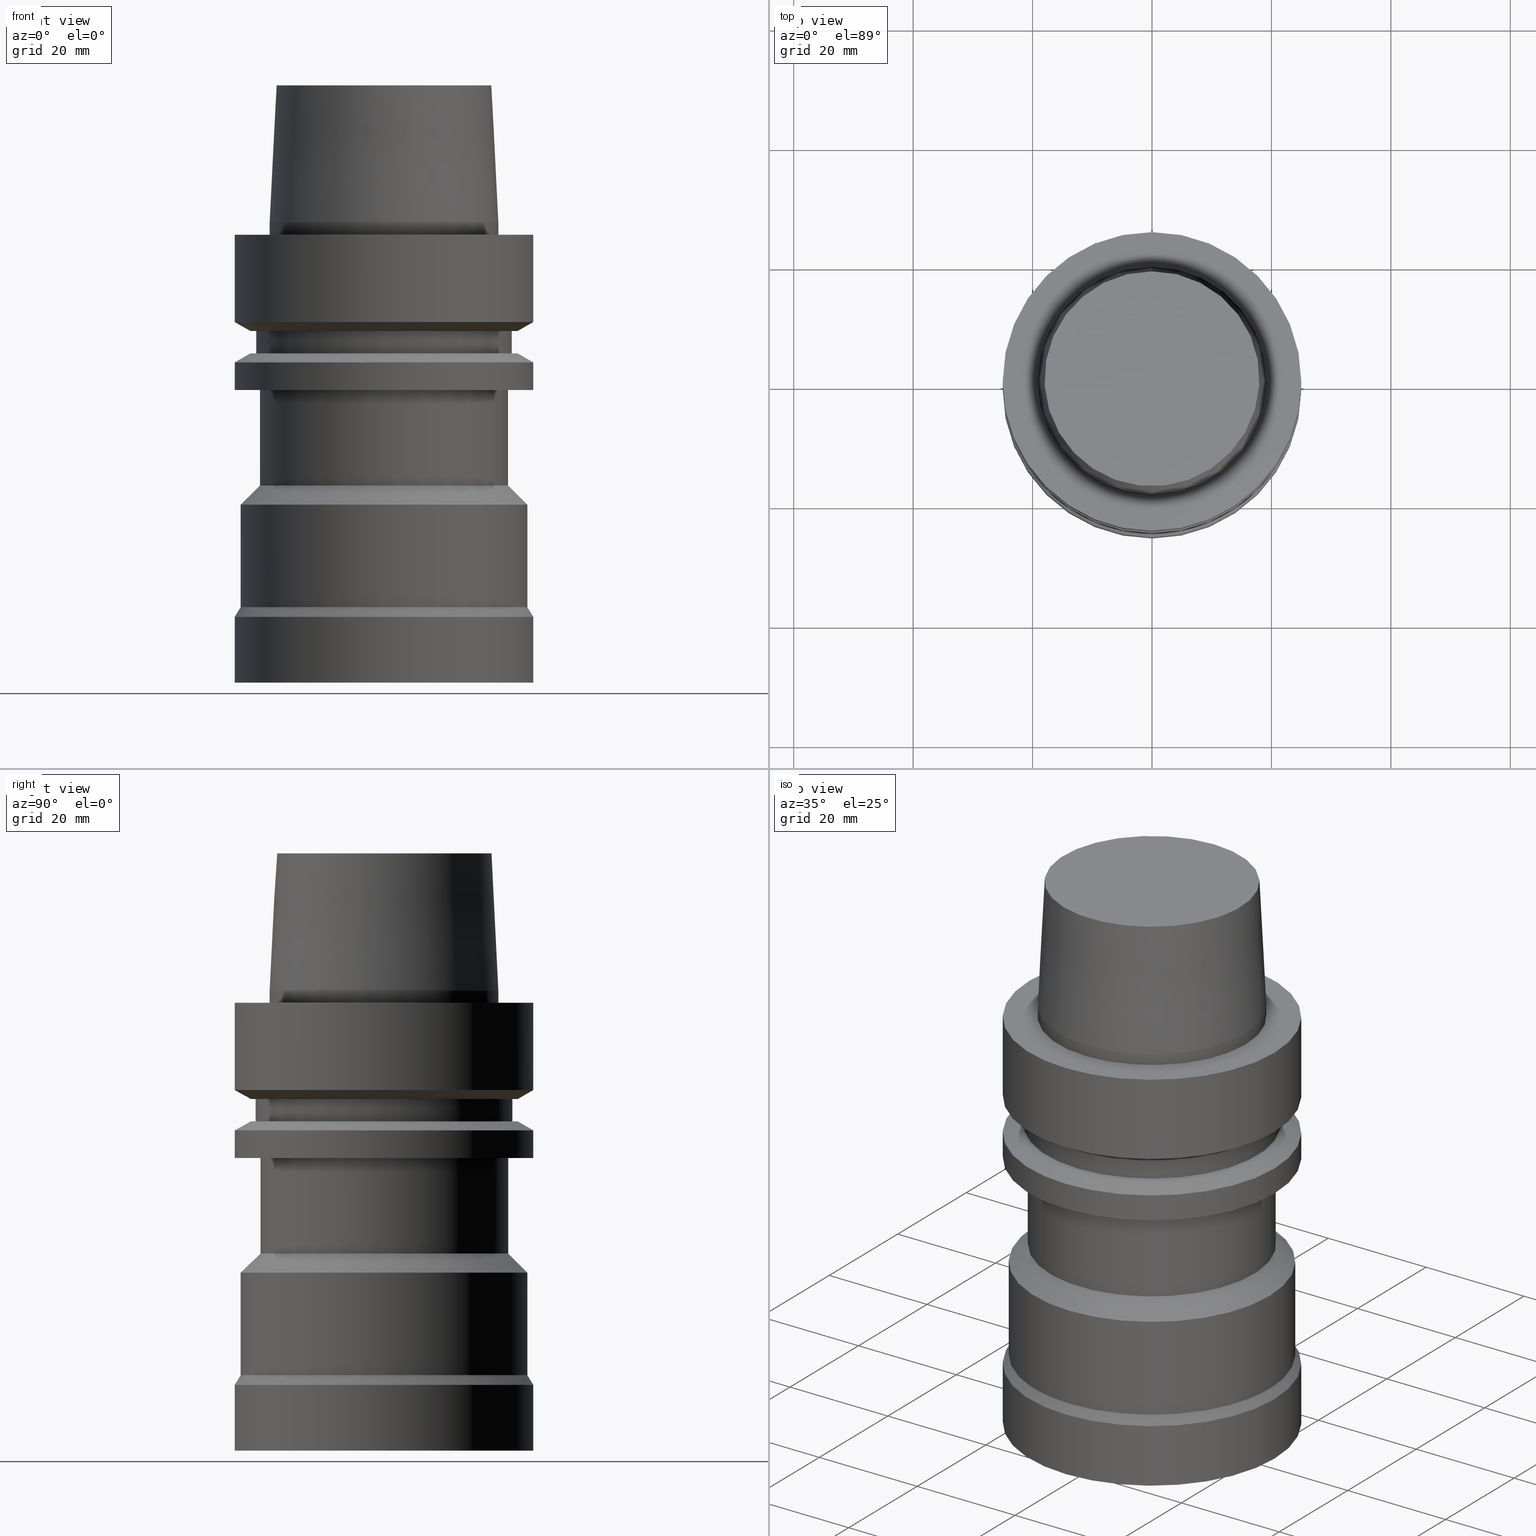
[diagram: canonical four-view strip — front | top / right | iso, engineering-drawing reading convention]
A machine part, canonical four-view strip (front | top / right | iso — engineering-drawing reading convention). The complete STEP part file that produces these views, byte-faithful:
ISO-10303-21;
HEADER;
FILE_DESCRIPTION((''),'1');
FILE_NAME('//Big_tech03/bigt/Translate/21_\X2\8F2A90ED7DDA\X0\-DXF/71_\X2\5207524A5DE55177\X0\/01_\X2\30A830F330C930DF30EB52A05DE5\X0\/01_\X2\30D530EB30AB30C330C830DF30EB\X0\ FCM/HSK/A 50/HSK-A50-FCM50115-75.stp','2012-05-30T04:59:51',(''),(''),'Spatial Interop R18','Kubotek KeyCreator V8.5.1 (14335)',' ');
FILE_SCHEMA(('CONFIG_CONTROL_DESIGN'));
ENDSEC;
DATA;
#1=DESIGN_CONTEXT('',#27,'design');
#2=APPLICATION_PROTOCOL_DEFINITION('INTERNATIONAL STANDARD','config_control_design',1994,#27);
#3=PRODUCT_CATEGORY_RELATIONSHIP('NONE','NONE',#28,#29);
#4=DATE_AND_TIME(#30,#31);
#5=DATE_TIME_ROLE('creation_date');
#6=DATE_TIME_ROLE('classification_date');
#7=PERSON_AND_ORGANIZATION_ROLE('creator');
#8=PERSON_AND_ORGANIZATION_ROLE('design_supplier');
#9=PERSON_AND_ORGANIZATION_ROLE('classification_officer');
#10=PERSON_AND_ORGANIZATION_ROLE('design_owner');
#11=APPROVAL_PERSON_ORGANIZATION(#32,#33,#34);
#12=APPROVAL_DATE_TIME(#4,#33);
#13=CC_DESIGN_APPROVAL(#33,(#35,#36,#37));
#14=CC_DESIGN_DATE_AND_TIME_ASSIGNMENT(#4,#5,(#37));
#15=CC_DESIGN_DATE_AND_TIME_ASSIGNMENT(#4,#6,(#35));
#16=CC_DESIGN_PERSON_AND_ORGANIZATION_ASSIGNMENT(#32,#10,(#38));
#17=CC_DESIGN_PERSON_AND_ORGANIZATION_ASSIGNMENT(#32,#7,(#37));
#18=CC_DESIGN_PERSON_AND_ORGANIZATION_ASSIGNMENT(#32,#7,(#36));
#19=CC_DESIGN_PERSON_AND_ORGANIZATION_ASSIGNMENT(#32,#8,(#36));
#20=CC_DESIGN_SECURITY_CLASSIFICATION(#35,(#36));
#21=CC_DESIGN_PERSON_AND_ORGANIZATION_ASSIGNMENT(#32,#9,(#35));
#22=SHAPE_DEFINITION_REPRESENTATION(#39,#40);
#23= (GEOMETRIC_REPRESENTATION_CONTEXT(3)GLOBAL_UNCERTAINTY_ASSIGNED_CONTEXT((#43))GLOBAL_UNIT_ASSIGNED_CONTEXT((#45,#46,#47))REPRESENTATION_CONTEXT('NONE','WORKSPACE'));
#27=APPLICATION_CONTEXT('CONFIGURATION CONTROLLED 3D DESIGNS OF MECHANICAL PARTS AND ASSEMBLIES');
#28=PRODUCT_CATEGORY('part','NONE');
#29=PRODUCT_RELATED_PRODUCT_CATEGORY('detail',' ',(#38));
#30=CALENDAR_DATE(2012,30,4);
#31=LOCAL_TIME(13,59,51.0,#49);
#32=PERSON_AND_ORGANIZATION(#50,#51);
#33=APPROVAL(#52,'SOLID MODEL');
#34=APPROVAL_ROLE('APPROVED');
#35=SECURITY_CLASSIFICATION('','',#53);
#36=PRODUCT_DEFINITION_FORMATION_WITH_SPECIFIED_SOURCE(' ','NONE',#38,.NOT_KNOWN.);
#37=PRODUCT_DEFINITION('NONE','NONE',#36,#1);
#38=PRODUCT('1','1','PART-1-DESC',(#54));
#39=PRODUCT_DEFINITION_SHAPE('NONE','NONE',#37);
#40=ADVANCED_BREP_SHAPE_REPRESENTATION('1',(#55,#56),#23);
#43=UNCERTAINTY_MEASURE_WITH_UNIT(LENGTH_MEASURE(1.0E-006),#45,'','');
#45= (CONVERSION_BASED_UNIT('MILLIMETRE',#59)LENGTH_UNIT()NAMED_UNIT(#62));
#46= (NAMED_UNIT(#64)PLANE_ANGLE_UNIT()SI_UNIT($,.RADIAN.));
#47= (NAMED_UNIT(#64)SOLID_ANGLE_UNIT()SI_UNIT($,.STERADIAN.));
#49=COORDINATED_UNIVERSAL_TIME_OFFSET(9,0,.AHEAD.);
#50=PERSON('','UNSPECIFIED',$,$,$,$);
#51=ORGANIZATION('UNSPECIFIED','UNSPECIFIED','UNSPECIFIED');
#52=APPROVAL_STATUS('approved');
#53=SECURITY_CLASSIFICATION_LEVEL('unclassified');
#54=MECHANICAL_CONTEXT('',#27,'mechanical');
#55=MANIFOLD_SOLID_BREP('1',#70);
#56=AXIS2_PLACEMENT_3D('',#71,#72,#73);
#59=LENGTH_MEASURE_WITH_UNIT(LENGTH_MEASURE(1.0),#74);
#62=DIMENSIONAL_EXPONENTS(1.0,0.0,0.0,0.0,0.0,0.0,0.0);
#64=DIMENSIONAL_EXPONENTS(0.0,0.0,0.0,0.0,0.0,0.0,0.0);
#70=CLOSED_SHELL('',(#75,#76,#77,#78,#79,#80,#81,#82,#83,#84,#85,#86,#87,#88,#89,#90,#91,#92));
#71=CARTESIAN_POINT('',(0.0,0.0,0.0));
#72=DIRECTION('',(0.0,0.0,1.0));
#73=DIRECTION('',(1.0,0.0,0.0));
#74= (NAMED_UNIT(#62)LENGTH_UNIT()SI_UNIT(.MILLI.,.METRE.));
#75=ADVANCED_FACE('',(#94),#95,.T.);
#76=ADVANCED_FACE('',(#96),#97,.T.);
#77=ADVANCED_FACE('',(#98,#99),#100,.T.);
#78=ADVANCED_FACE('',(#101,#102),#103,.T.);
#79=ADVANCED_FACE('',(#104,#105),#106,.T.);
#80=ADVANCED_FACE('',(#107,#108),#109,.T.);
#81=ADVANCED_FACE('',(#110,#111),#112,.T.);
#82=ADVANCED_FACE('',(#113,#114),#115,.T.);
#83=ADVANCED_FACE('',(#116,#117),#118,.T.);
#84=ADVANCED_FACE('',(#119,#120),#121,.T.);
#85=ADVANCED_FACE('',(#122,#123),#124,.T.);
#86=ADVANCED_FACE('',(#125,#126),#127,.T.);
#87=ADVANCED_FACE('',(#128,#129),#130,.T.);
#88=ADVANCED_FACE('',(#131,#132),#133,.T.);
#89=ADVANCED_FACE('',(#134,#135),#136,.T.);
#90=ADVANCED_FACE('',(#137,#138),#139,.T.);
#91=ADVANCED_FACE('',(#140,#141),#142,.T.);
#92=ADVANCED_FACE('',(#143,#144),#145,.T.);
#94=FACE_OUTER_BOUND('',#146,.T.);
#95=PLANE('',#147);
#96=FACE_OUTER_BOUND('',#148,.T.);
#97=PLANE('',#149);
#98=FACE_BOUND('',#150,.T.);
#99=FACE_BOUND('',#151,.T.);
#100=CONICAL_SURFACE('',#152,18.5750000005215,0.049958395676703);
#101=FACE_BOUND('',#153,.T.);
#102=FACE_BOUND('',#154,.T.);
#103=CYLINDRICAL_SURFACE('',#155,19.15);
#104=FACE_OUTER_BOUND('',#156,.T.);
#105=FACE_BOUND('',#157,.T.);
#106=PLANE('',#158);
#107=FACE_BOUND('',#159,.T.);
#108=FACE_BOUND('',#160,.T.);
#109=CYLINDRICAL_SURFACE('',#161,25.0);
#110=FACE_BOUND('',#162,.T.);
#111=FACE_BOUND('',#163,.T.);
#112=CONICAL_SURFACE('',#164,23.69879763,1.04719755326565);
#113=FACE_BOUND('',#165,.T.);
#114=FACE_OUTER_BOUND('',#166,.T.);
#115=PLANE('',#167);
#116=FACE_BOUND('',#168,.T.);
#117=FACE_BOUND('',#169,.T.);
#118=CYLINDRICAL_SURFACE('',#170,21.5);
#119=FACE_OUTER_BOUND('',#171,.T.);
#120=FACE_BOUND('',#172,.T.);
#121=PLANE('',#173);
#122=FACE_BOUND('',#174,.T.);
#123=FACE_BOUND('',#175,.T.);
#124=CONICAL_SURFACE('',#176,23.69879763,1.04719755326565);
#125=FACE_BOUND('',#177,.T.);
#126=FACE_BOUND('',#178,.T.);
#127=CYLINDRICAL_SURFACE('',#179,25.0);
#128=FACE_BOUND('',#180,.T.);
#129=FACE_OUTER_BOUND('',#181,.T.);
#130=PLANE('',#182);
#131=FACE_BOUND('',#183,.T.);
#132=FACE_BOUND('',#184,.T.);
#133=CYLINDRICAL_SURFACE('',#185,20.8);
#134=FACE_BOUND('',#186,.T.);
#135=FACE_BOUND('',#187,.T.);
#136=CONICAL_SURFACE('',#188,22.4,0.785398163397448);
#137=FACE_BOUND('',#189,.T.);
#138=FACE_BOUND('',#190,.T.);
#139=CYLINDRICAL_SURFACE('',#191,24.0);
#140=FACE_BOUND('',#192,.T.);
#141=FACE_BOUND('',#193,.T.);
#142=CONICAL_SURFACE('',#194,24.5,0.54582981744348);
#143=FACE_BOUND('',#195,.T.);
#144=FACE_BOUND('',#196,.T.);
#145=CYLINDRICAL_SURFACE('',#197,25.0);
#146=EDGE_LOOP('',(#198));
#147=AXIS2_PLACEMENT_3D('',#199,#200,#201);
#148=EDGE_LOOP('',(#202));
#149=AXIS2_PLACEMENT_3D('',#203,#204,#205);
#150=EDGE_LOOP('',(#206));
#151=EDGE_LOOP('',(#207));
#152=AXIS2_PLACEMENT_3D('',#208,#209,#210);
#153=EDGE_LOOP('',(#211));
#154=EDGE_LOOP('',(#212));
#155=AXIS2_PLACEMENT_3D('',#213,#214,#215);
#156=EDGE_LOOP('',(#216));
#157=EDGE_LOOP('',(#217));
#158=AXIS2_PLACEMENT_3D('',#218,#219,#220);
#159=EDGE_LOOP('',(#221));
#160=EDGE_LOOP('',(#222));
#161=AXIS2_PLACEMENT_3D('',#223,#224,#225);
#162=EDGE_LOOP('',(#226));
#163=EDGE_LOOP('',(#227));
#164=AXIS2_PLACEMENT_3D('',#228,#229,#230);
#165=EDGE_LOOP('',(#231));
#166=EDGE_LOOP('',(#232));
#167=AXIS2_PLACEMENT_3D('',#233,#234,#235);
#168=EDGE_LOOP('',(#236));
#169=EDGE_LOOP('',(#237));
#170=AXIS2_PLACEMENT_3D('',#238,#239,#240);
#171=EDGE_LOOP('',(#241));
#172=EDGE_LOOP('',(#242));
#173=AXIS2_PLACEMENT_3D('',#243,#244,#245);
#174=EDGE_LOOP('',(#246));
#175=EDGE_LOOP('',(#247));
#176=AXIS2_PLACEMENT_3D('',#248,#249,#250);
#177=EDGE_LOOP('',(#251));
#178=EDGE_LOOP('',(#252));
#179=AXIS2_PLACEMENT_3D('',#253,#254,#255);
#180=EDGE_LOOP('',(#256));
#181=EDGE_LOOP('',(#257));
#182=AXIS2_PLACEMENT_3D('',#258,#259,#260);
#183=EDGE_LOOP('',(#261));
#184=EDGE_LOOP('',(#262));
#185=AXIS2_PLACEMENT_3D('',#263,#264,#265);
#186=EDGE_LOOP('',(#266));
#187=EDGE_LOOP('',(#267));
#188=AXIS2_PLACEMENT_3D('',#268,#269,#270);
#189=EDGE_LOOP('',(#271));
#190=EDGE_LOOP('',(#272));
#191=AXIS2_PLACEMENT_3D('',#273,#274,#275);
#192=EDGE_LOOP('',(#276));
#193=EDGE_LOOP('',(#277));
#194=AXIS2_PLACEMENT_3D('',#278,#279,#280);
#195=EDGE_LOOP('',(#281));
#196=EDGE_LOOP('',(#282));
#197=AXIS2_PLACEMENT_3D('',#283,#284,#285);
#198=ORIENTED_EDGE('',*,*,#286,.T.);
#199=CARTESIAN_POINT('',(4.59242549680257E-015,12.5,-75.0));
#200=DIRECTION('',(6.12323399573677E-017,1.22464679914735E-016,-1.0));
#201=DIRECTION('',(-1.23259516440783E-032,1.0,1.22464679914735E-016));
#202=ORIENTED_EDGE('',*,*,#287,.F.);
#203=CARTESIAN_POINT('',(-1.53080849893419E-015,9.00000000052154,25.0));
#204=DIRECTION('',(-6.12323399573677E-017,-1.22464679914735E-016,1.0));
#205=DIRECTION('',(1.23259516440783E-032,-1.0,-1.22464679914735E-016));
#206=ORIENTED_EDGE('',*,*,#288,.F.);
#207=ORIENTED_EDGE('',*,*,#287,.T.);
#208=CARTESIAN_POINT('',(-8.26636589424463E-016,-1.65327317884893E-015,13.5));
#209=DIRECTION('',(6.12323399573677E-017,1.22464679914735E-016,-1.0));
#210=DIRECTION('',(-1.23259516440783E-032,1.0,1.22464679914735E-016));
#211=ORIENTED_EDGE('',*,*,#289,.F.);
#212=ORIENTED_EDGE('',*,*,#288,.T.);
#213=CARTESIAN_POINT('',(-6.12323399573677E-017,-1.22464679914735E-016,1.0));
#214=DIRECTION('',(-6.12323399573677E-017,-1.22464679914735E-016,1.0));
#215=DIRECTION('',(-1.23259516440783E-032,1.0,1.22464679914735E-016));
#216=ORIENTED_EDGE('',*,*,#290,.F.);
#217=ORIENTED_EDGE('',*,*,#289,.T.);
#218=CARTESIAN_POINT('',(-2.72095382543029E-031,22.075,2.70340780911778E-015));
#219=DIRECTION('',(-6.12323399573677E-017,-1.22464679914735E-016,1.0));
#220=DIRECTION('',(1.23259516440783E-032,-1.0,-1.22464679914735E-016));
#221=ORIENTED_EDGE('',*,*,#291,.F.);
#222=ORIENTED_EDGE('',*,*,#290,.T.);
#223=CARTESIAN_POINT('',(4.47684973986342E-016,8.95369947972685E-016,-7.311250465));
#224=DIRECTION('',(-6.12323399573677E-017,-1.22464679914735E-016,1.0));
#225=DIRECTION('',(-1.23259516440783E-032,1.0,1.22464679914735E-016));
#226=ORIENTED_EDGE('',*,*,#292,.F.);
#227=ORIENTED_EDGE('',*,*,#291,.T.);
#228=CARTESIAN_POINT('',(9.41370714892619E-016,1.88274142978524E-015,-15.373750465));
#229=DIRECTION('',(-6.12323399573676E-017,-1.22464679914735E-016,1.0));
#230=DIRECTION('',(-1.23259516440783E-032,1.0,1.22464679914735E-016));
#231=ORIENTED_EDGE('',*,*,#293,.F.);
#232=ORIENTED_EDGE('',*,*,#292,.T.);
#233=CARTESIAN_POINT('',(9.87371481812553E-016,21.94879763,-16.125));
#234=DIRECTION('',(6.12323399573677E-017,1.22464679914735E-016,-1.0));
#235=DIRECTION('',(-1.23259516440783E-032,1.0,1.22464679914735E-016));
#236=ORIENTED_EDGE('',*,*,#294,.F.);
#237=ORIENTED_EDGE('',*,*,#293,.T.);
#238=CARTESIAN_POINT('',(1.10218211923262E-015,2.20436423846524E-015,-18.0));
#239=DIRECTION('',(-6.12323399573677E-017,-1.22464679914735E-016,1.0));
#240=DIRECTION('',(-1.23259516440783E-032,1.0,1.22464679914735E-016));
#241=ORIENTED_EDGE('',*,*,#295,.F.);
#242=ORIENTED_EDGE('',*,*,#294,.T.);
#243=CARTESIAN_POINT('',(1.21699275665268E-015,21.94879763,-19.875));
#244=DIRECTION('',(-6.12323399573677E-017,-1.22464679914735E-016,1.0));
#245=DIRECTION('',(1.23259516440783E-032,-1.0,-1.22464679914735E-016));
#246=ORIENTED_EDGE('',*,*,#296,.F.);
#247=ORIENTED_EDGE('',*,*,#295,.T.);
#248=CARTESIAN_POINT('',(1.26299352357262E-015,2.52598704714523E-015,-20.626249535));
#249=DIRECTION('',(6.12323399573676E-017,1.22464679914735E-016,-1.0));
#250=DIRECTION('',(-1.23259516440783E-032,1.0,1.22464679914735E-016));
#251=ORIENTED_EDGE('',*,*,#297,.F.);
#252=ORIENTED_EDGE('',*,*,#296,.T.);
#253=CARTESIAN_POINT('',(1.45051756469206E-015,2.90103512938411E-015,-23.688749535));
#254=DIRECTION('',(-6.12323399573677E-017,-1.22464679914735E-016,1.0));
#255=DIRECTION('',(-1.23259516440783E-032,1.0,1.22464679914735E-016));
#256=ORIENTED_EDGE('',*,*,#298,.F.);
#257=ORIENTED_EDGE('',*,*,#297,.T.);
#258=CARTESIAN_POINT('',(1.59204083889156E-015,22.9,-26.0));
#259=DIRECTION('',(6.12323399573677E-017,1.22464679914735E-016,-1.0));
#260=DIRECTION('',(-1.23259516440783E-032,1.0,1.22464679914735E-016));
#261=ORIENTED_EDGE('',*,*,#299,.F.);
#262=ORIENTED_EDGE('',*,*,#298,.T.);
#263=CARTESIAN_POINT('',(2.0818995585505E-015,4.163799117101E-015,-34.0));
#264=DIRECTION('',(-6.12323399573677E-017,-1.22464679914735E-016,1.0));
#265=DIRECTION('',(-1.23259516440783E-032,1.0,1.22464679914735E-016));
#266=ORIENTED_EDGE('',*,*,#300,.F.);
#267=ORIENTED_EDGE('',*,*,#299,.T.);
#268=CARTESIAN_POINT('',(2.66973002214123E-015,5.33946004428246E-015,-43.6));
#269=DIRECTION('',(6.12323399573677E-017,1.22464679914735E-016,-1.0));
#270=DIRECTION('',(-1.23259516440783E-032,1.0,1.22464679914735E-016));
#271=ORIENTED_EDGE('',*,*,#301,.F.);
#272=ORIENTED_EDGE('',*,*,#300,.T.);
#273=CARTESIAN_POINT('',(3.29287898866524E-015,6.58575797733049E-015,-53.776794925));
#274=DIRECTION('',(-6.12323399573677E-017,-1.22464679914735E-016,1.0));
#275=DIRECTION('',(-1.23259516440783E-032,1.0,1.22464679914735E-016));
#276=ORIENTED_EDGE('',*,*,#302,.F.);
#277=ORIENTED_EDGE('',*,*,#301,.T.);
#278=CARTESIAN_POINT('',(3.8684629842645E-015,7.736925968529E-015,-63.176794925));
#279=DIRECTION('',(6.12323399573677E-017,1.22464679914735E-016,-1.0));
#280=DIRECTION('',(-1.23259516440783E-032,1.0,1.22464679914735E-016));
#281=ORIENTED_EDGE('',*,*,#286,.F.);
#282=ORIENTED_EDGE('',*,*,#302,.T.);
#283=CARTESIAN_POINT('',(4.25564762703705E-015,8.5112952540741E-015,-69.5));
#284=DIRECTION('',(-6.12323399573677E-017,-1.22464679914735E-016,1.0));
#285=DIRECTION('',(-1.23259516440783E-032,1.0,1.22464679914735E-016));
#286=EDGE_CURVE('',#303,#303,#304,.T.);
#287=EDGE_CURVE('',#305,#305,#306,.T.);
#288=EDGE_CURVE('',#307,#307,#308,.T.);
#289=EDGE_CURVE('',#309,#309,#310,.T.);
#290=EDGE_CURVE('',#311,#311,#312,.T.);
#291=EDGE_CURVE('',#313,#313,#314,.T.);
#292=EDGE_CURVE('',#315,#315,#316,.T.);
#293=EDGE_CURVE('',#317,#317,#318,.T.);
#294=EDGE_CURVE('',#319,#319,#320,.T.);
#295=EDGE_CURVE('',#321,#321,#322,.T.);
#296=EDGE_CURVE('',#323,#323,#324,.T.);
#297=EDGE_CURVE('',#325,#325,#326,.T.);
#298=EDGE_CURVE('',#327,#327,#328,.T.);
#299=EDGE_CURVE('',#329,#329,#330,.T.);
#300=EDGE_CURVE('',#331,#331,#332,.T.);
#301=EDGE_CURVE('',#333,#333,#334,.T.);
#302=EDGE_CURVE('',#335,#335,#336,.T.);
#303=VERTEX_POINT('',#337);
#304=CIRCLE('',#338,25.0);
#305=VERTEX_POINT('',#339);
#306=CIRCLE('',#340,18.0000000010431);
#307=VERTEX_POINT('',#341);
#308=CIRCLE('',#342,19.15);
#309=VERTEX_POINT('',#343);
#310=CIRCLE('',#344,19.15);
#311=VERTEX_POINT('',#345);
#312=CIRCLE('',#346,25.0);
#313=VERTEX_POINT('',#347);
#314=CIRCLE('',#348,25.0);
#315=VERTEX_POINT('',#349);
#316=CIRCLE('',#350,22.39759526);
#317=VERTEX_POINT('',#351);
#318=CIRCLE('',#352,21.5);
#319=VERTEX_POINT('',#353);
#320=CIRCLE('',#354,21.5);
#321=VERTEX_POINT('',#355);
#322=CIRCLE('',#356,22.39759526);
#323=VERTEX_POINT('',#357);
#324=CIRCLE('',#358,25.0);
#325=VERTEX_POINT('',#359);
#326=CIRCLE('',#360,25.0);
#327=VERTEX_POINT('',#361);
#328=CIRCLE('',#362,20.8);
#329=VERTEX_POINT('',#363);
#330=CIRCLE('',#364,20.8);
#331=VERTEX_POINT('',#365);
#332=CIRCLE('',#366,24.0);
#333=VERTEX_POINT('',#367);
#334=CIRCLE('',#368,24.0);
#335=VERTEX_POINT('',#369);
#336=CIRCLE('',#370,25.0);
#337=CARTESIAN_POINT('',(4.59242549680257E-015,25.0,-75.0));
#338=AXIS2_PLACEMENT_3D('',#371,#372,#373);
#339=CARTESIAN_POINT('',(-1.53080849893419E-015,18.0000000010431,25.0));
#340=AXIS2_PLACEMENT_3D('',#374,#375,#376);
#341=CARTESIAN_POINT('',(-1.22464679914736E-016,19.15,2.0));
#342=AXIS2_PLACEMENT_3D('',#377,#378,#379);
#343=CARTESIAN_POINT('',(-2.360419739841E-031,19.15,2.34519862036718E-015));
#344=AXIS2_PLACEMENT_3D('',#380,#381,#382);
#345=CARTESIAN_POINT('',(-3.08148791101958E-031,25.0,3.06161699786838E-015));
#346=AXIS2_PLACEMENT_3D('',#383,#384,#385);
#347=CARTESIAN_POINT('',(8.95369947972684E-016,25.0,-14.62250093));
#348=AXIS2_PLACEMENT_3D('',#386,#387,#388);
#349=CARTESIAN_POINT('',(9.87371481812553E-016,22.39759526,-16.125));
#350=AXIS2_PLACEMENT_3D('',#389,#390,#391);
#351=CARTESIAN_POINT('',(9.87371481812553E-016,21.5,-16.125));
#352=AXIS2_PLACEMENT_3D('',#392,#393,#394);
#353=CARTESIAN_POINT('',(1.21699275665268E-015,21.5,-19.875));
#354=AXIS2_PLACEMENT_3D('',#395,#396,#397);
#355=CARTESIAN_POINT('',(1.21699275665268E-015,22.39759526,-19.875));
#356=AXIS2_PLACEMENT_3D('',#398,#399,#400);
#357=CARTESIAN_POINT('',(1.30899429049255E-015,25.0,-21.37749907));
#358=AXIS2_PLACEMENT_3D('',#401,#402,#403);
#359=CARTESIAN_POINT('',(1.59204083889156E-015,25.0,-26.0));
#360=AXIS2_PLACEMENT_3D('',#404,#405,#406);
#361=CARTESIAN_POINT('',(1.59204083889156E-015,20.8,-26.0));
#362=AXIS2_PLACEMENT_3D('',#407,#408,#409);
#363=CARTESIAN_POINT('',(2.57175827820944E-015,20.8,-42.0));
#364=AXIS2_PLACEMENT_3D('',#410,#411,#412);
#365=CARTESIAN_POINT('',(2.76770176607302E-015,24.0,-45.2));
#366=AXIS2_PLACEMENT_3D('',#413,#414,#415);
#367=CARTESIAN_POINT('',(3.81805621125747E-015,24.0,-62.35358985));
#368=AXIS2_PLACEMENT_3D('',#416,#417,#418);
#369=CARTESIAN_POINT('',(3.91886975727153E-015,25.0,-64.0));
#370=AXIS2_PLACEMENT_3D('',#419,#420,#421);
#371=CARTESIAN_POINT('',(4.59242549680257E-015,9.18485099360515E-015,-75.0));
#372=DIRECTION('',(6.12323399573677E-017,1.22464679914735E-016,-1.0));
#373=DIRECTION('',(-1.23259516440783E-032,1.0,1.22464679914735E-016));
#374=CARTESIAN_POINT('',(-1.53080849893419E-015,-3.06161699786838E-015,25.0));
#375=DIRECTION('',(6.12323399573677E-017,1.22464679914735E-016,-1.0));
#376=DIRECTION('',(-1.23259516440783E-032,1.0,1.22464679914735E-016));
#377=CARTESIAN_POINT('',(-1.22464679914735E-016,-2.44929359829471E-016,2.0));
#378=DIRECTION('',(6.12323399573677E-017,1.22464679914735E-016,-1.0));
#379=DIRECTION('',(-1.23259516440783E-032,1.0,1.22464679914735E-016));
#380=CARTESIAN_POINT('',(0.0,0.0,0.0));
#381=DIRECTION('',(6.12323399573677E-017,1.22464679914735E-016,-1.0));
#382=DIRECTION('',(-1.23259516440783E-032,1.0,1.22464679914735E-016));
#383=CARTESIAN_POINT('',(0.0,0.0,0.0));
#384=DIRECTION('',(6.12323399573677E-017,1.22464679914735E-016,-1.0));
#385=DIRECTION('',(-1.23259516440783E-032,1.0,1.22464679914735E-016));
#386=CARTESIAN_POINT('',(8.95369947972685E-016,1.79073989594537E-015,-14.62250093));
#387=DIRECTION('',(6.12323399573677E-017,1.22464679914735E-016,-1.0));
#388=DIRECTION('',(-1.23259516440783E-032,1.0,1.22464679914735E-016));
#389=CARTESIAN_POINT('',(9.87371481812554E-016,1.97474296362511E-015,-16.125));
#390=DIRECTION('',(6.12323399573677E-017,1.22464679914735E-016,-1.0));
#391=DIRECTION('',(-1.23259516440783E-032,1.0,1.22464679914735E-016));
#392=CARTESIAN_POINT('',(9.87371481812554E-016,1.97474296362511E-015,-16.125));
#393=DIRECTION('',(6.12323399573677E-017,1.22464679914735E-016,-1.0));
#394=DIRECTION('',(-1.23259516440783E-032,1.0,1.22464679914735E-016));
#395=CARTESIAN_POINT('',(1.21699275665268E-015,2.43398551330536E-015,-19.875));
#396=DIRECTION('',(6.12323399573677E-017,1.22464679914735E-016,-1.0));
#397=DIRECTION('',(-1.23259516440783E-032,1.0,1.22464679914735E-016));
#398=CARTESIAN_POINT('',(1.21699275665268E-015,2.43398551330536E-015,-19.875));
#399=DIRECTION('',(6.12323399573677E-017,1.22464679914735E-016,-1.0));
#400=DIRECTION('',(-1.23259516440783E-032,1.0,1.22464679914735E-016));
#401=CARTESIAN_POINT('',(1.30899429049255E-015,2.6179885809851E-015,-21.37749907));
#402=DIRECTION('',(6.12323399573677E-017,1.22464679914735E-016,-1.0));
#403=DIRECTION('',(-1.23259516440783E-032,1.0,1.22464679914735E-016));
#404=CARTESIAN_POINT('',(1.59204083889156E-015,3.18408167778312E-015,-26.0));
#405=DIRECTION('',(6.12323399573677E-017,1.22464679914735E-016,-1.0));
#406=DIRECTION('',(-1.23259516440783E-032,1.0,1.22464679914735E-016));
#407=CARTESIAN_POINT('',(1.59204083889156E-015,3.18408167778312E-015,-26.0));
#408=DIRECTION('',(6.12323399573677E-017,1.22464679914735E-016,-1.0));
#409=DIRECTION('',(-1.23259516440783E-032,1.0,1.22464679914735E-016));
#410=CARTESIAN_POINT('',(2.57175827820944E-015,5.14351655641888E-015,-42.0));
#411=DIRECTION('',(6.12323399573677E-017,1.22464679914735E-016,-1.0));
#412=DIRECTION('',(-1.23259516440783E-032,1.0,1.22464679914735E-016));
#413=CARTESIAN_POINT('',(2.76770176607302E-015,5.53540353214604E-015,-45.2));
#414=DIRECTION('',(6.12323399573677E-017,1.22464679914735E-016,-1.0));
#415=DIRECTION('',(-1.23259516440783E-032,1.0,1.22464679914735E-016));
#416=CARTESIAN_POINT('',(3.81805621125747E-015,7.63611242251494E-015,-62.35358985));
#417=DIRECTION('',(6.12323399573677E-017,1.22464679914735E-016,-1.0));
#418=DIRECTION('',(-1.23259516440783E-032,1.0,1.22464679914735E-016));
#419=CARTESIAN_POINT('',(3.91886975727153E-015,7.83773951454306E-015,-64.0));
#420=DIRECTION('',(6.12323399573677E-017,1.22464679914735E-016,-1.0));
#421=DIRECTION('',(-1.23259516440783E-032,1.0,1.22464679914735E-016));
ENDSEC;
END-ISO-10303-21;
